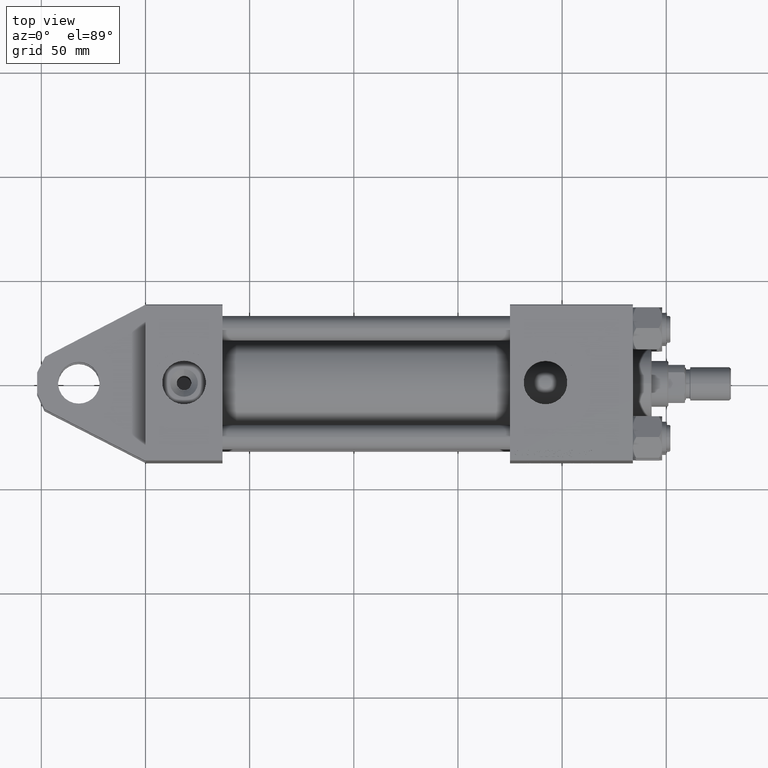
[diagram: clean part render]
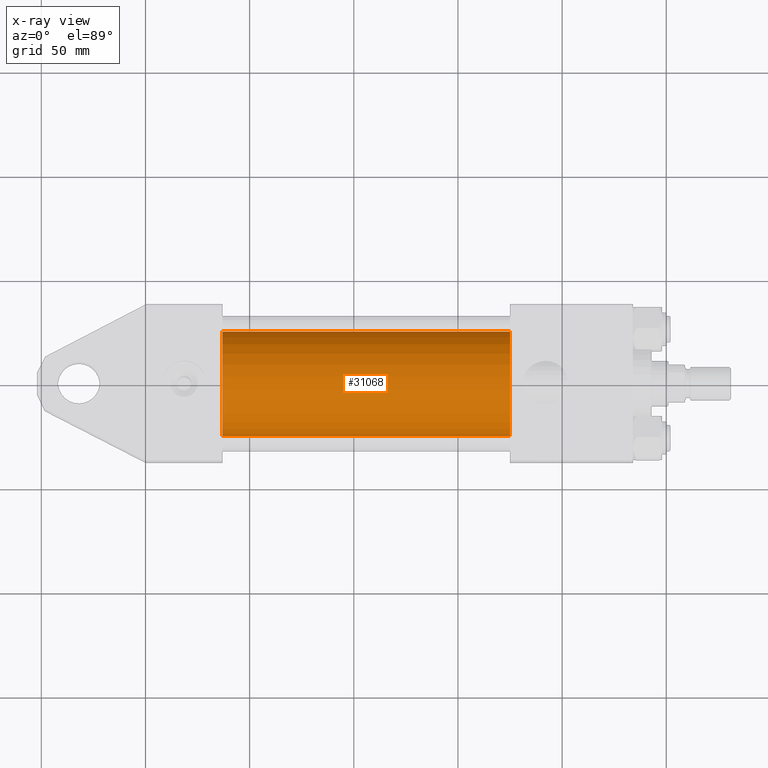
[diagram: x-ray — body ghosted, one internal face saturated and labeled with its STEP entity id]
A machine part, top view, then the same camera in x-ray: the body is ghosted and one INTERNAL B-rep face — a face not visible from any outside direction — is saturated and labeled: STEP entity #31068.
In plain terms, the highlighted cylindrical surface (partial cylindrical patch) has radius 25 mm, axis along (-1, -0, 0).
Its self-contained STEP definition (entity closure, byte-faithful):
#271 = VERTEX_POINT ( 'NONE', #32198 ) ;
#618 = LINE ( 'NONE', #47932, #25080 ) ;
#632 = ORIENTED_EDGE ( 'NONE', *, *, #1961, .F. ) ;
#1102 = ORIENTED_EDGE ( 'NONE', *, *, #21829, .T. ) ;
#1961 = EDGE_CURVE ( 'NONE', #271, #47328, #42197, .T. ) ;
#3427 = EDGE_CURVE ( 'NONE', #8992, #271, #23278, .T. ) ;
#8992 = VERTEX_POINT ( 'NONE', #10979 ) ;
#9861 = DIRECTION ( 'NONE',  ( -1.000000000000000000, -0.000000000000000000, -0.000000000000000000 ) ) ;
#10979 = CARTESIAN_POINT ( 'NONE',  ( 175.0000000000000284, -3.469446951953614189E-15, 25.00000000000000000 ) ) ;
#13106 = CARTESIAN_POINT ( 'NONE',  ( 37.00000000000000000, -3.469446951953614189E-15, 0.000000000000000000 ) ) ;
#14235 = DIRECTION ( 'NONE',  ( 1.000000000000000000, 0.000000000000000000, 0.000000000000000000 ) ) ;
#17529 = CARTESIAN_POINT ( 'NONE',  ( 175.0000000000000284, -3.469446951953614189E-15, 0.000000000000000000 ) ) ;
#19326 = ORIENTED_EDGE ( 'NONE', *, *, #3427, .F. ) ;
#21829 = EDGE_CURVE ( 'NONE', #8992, #48854, #35963, .T. ) ;
#22151 = CARTESIAN_POINT ( 'NONE',  ( 175.0000000000000284, -4.078299540852309983E-16, -25.00000000000000000 ) ) ;
#23278 = LINE ( 'NONE', #42819, #43062 ) ;
#25080 = VECTOR ( 'NONE', #37298, 1000.000000000000000 ) ;
#25934 = DIRECTION ( 'NONE',  ( 0.000000000000000000, 0.000000000000000000, 1.000000000000000000 ) ) ;
#26874 = DIRECTION ( 'NONE',  ( 0.000000000000000000, 0.000000000000000000, -1.000000000000000000 ) ) ;
#27512 = AXIS2_PLACEMENT_3D ( 'NONE', #30586, #14235, #26874 ) ;
#28853 = EDGE_CURVE ( 'NONE', #48854, #47328, #618, .T. ) ;
#30586 = CARTESIAN_POINT ( 'NONE',  ( 175.0000000000000284, -3.469446951953614189E-15, 0.000000000000000000 ) ) ;
#31068 = ADVANCED_FACE ( 'NONE', ( #41253 ), #45998, .F. ) ;
#31858 = EDGE_LOOP ( 'NONE', ( #1102, #50177, #632, #19326 ) ) ;
#32198 = CARTESIAN_POINT ( 'NONE',  ( 37.00000000000000000, -3.469446951953614189E-15, 25.00000000000000000 ) ) ;
#35963 = CIRCLE ( 'NONE', #27512, 25.00000000000000000 ) ;
#37104 = DIRECTION ( 'NONE',  ( 0.000000000000000000, 0.000000000000000000, -1.000000000000000000 ) ) ;
#37298 = DIRECTION ( 'NONE',  ( -1.000000000000000000, -0.000000000000000000, -0.000000000000000000 ) ) ;
#39688 = AXIS2_PLACEMENT_3D ( 'NONE', #13106, #41052, #37104 ) ;
#41020 = CARTESIAN_POINT ( 'NONE',  ( 37.00000000000000000, -4.078299540852309983E-16, -25.00000000000000000 ) ) ;
#41052 = DIRECTION ( 'NONE',  ( 1.000000000000000000, 0.000000000000000000, 0.000000000000000000 ) ) ;
#41253 = FACE_OUTER_BOUND ( 'NONE', #31858, .T. ) ;
#42197 = CIRCLE ( 'NONE', #39688, 25.00000000000000000 ) ;
#42819 = CARTESIAN_POINT ( 'NONE',  ( 175.0000000000000284, -3.469446951953614189E-15, 25.00000000000000000 ) ) ;
#43062 = VECTOR ( 'NONE', #47828, 1000.000000000000000 ) ;
#45998 = CYLINDRICAL_SURFACE ( 'NONE', #46258, 25.00000000000000000 ) ;
#46258 = AXIS2_PLACEMENT_3D ( 'NONE', #17529, #9861, #25934 ) ;
#47328 = VERTEX_POINT ( 'NONE', #41020 ) ;
#47828 = DIRECTION ( 'NONE',  ( -1.000000000000000000, -0.000000000000000000, -0.000000000000000000 ) ) ;
#47932 = CARTESIAN_POINT ( 'NONE',  ( 175.0000000000000284, -4.078299540852309983E-16, -25.00000000000000000 ) ) ;
#48854 = VERTEX_POINT ( 'NONE', #22151 ) ;
#50177 = ORIENTED_EDGE ( 'NONE', *, *, #28853, .T. ) ;